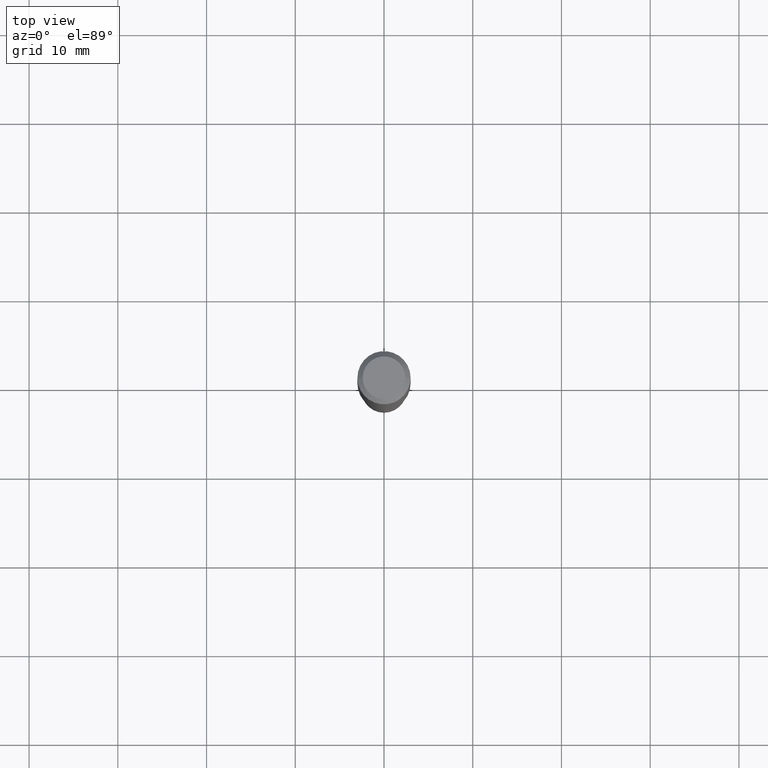
[diagram: clean part render]
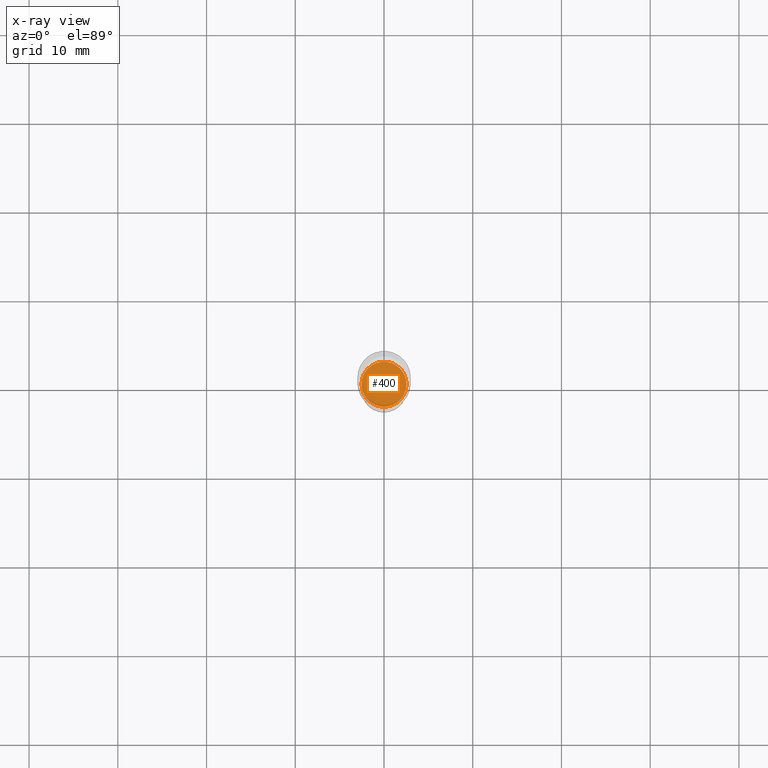
[diagram: x-ray — body ghosted, one internal face saturated and labeled with its STEP entity id]
A machine part, top view, then the same camera in x-ray: the body is ghosted and one INTERNAL B-rep face — a face not visible from any outside direction — is saturated and labeled: STEP entity #400.
In plain terms, the highlighted planar face has unit normal (-0, 0, 1).
Its self-contained STEP definition (entity closure, byte-faithful):
#23 = CARTESIAN_POINT ( 'NONE',  ( 0.09990000000000000269, -6.621943507249908450E-15, -1.696800000000000308 ) ) ;
#26 = VERTEX_POINT ( 'NONE', #88 ) ;
#38 = AXIS2_PLACEMENT_3D ( 'NONE', #97, #295, #216 ) ;
#88 = CARTESIAN_POINT ( 'NONE',  ( -0.09990000000000000269, -5.211864115550599962E-15, -1.696800000000000308 ) ) ;
#97 = CARTESIAN_POINT ( 'NONE',  ( 4.149471470334940863E-29, -5.924345535749050380E-15, -1.696800000000000308 ) ) ;
#126 = PLANE ( 'NONE',  #264 ) ;
#164 = CARTESIAN_POINT ( 'NONE',  ( 4.149471470334940863E-29, -5.924345535749050380E-15, -1.696800000000000308 ) ) ;
#165 = CIRCLE ( 'NONE', #433, 0.09990000000000000269 ) ;
#184 = ORIENTED_EDGE ( 'NONE', *, *, #362, .F. ) ;
#187 = DIRECTION ( 'NONE',  ( -2.445468806185136597E-29, 3.491481338843145583E-15, 1.000000000000000000 ) ) ;
#189 = CARTESIAN_POINT ( 'NONE',  ( 4.149471470334940863E-29, -5.924345535749050380E-15, -1.696800000000000308 ) ) ;
#196 = DIRECTION ( 'NONE',  ( -2.438088387897960049E-29, 3.491481338843145188E-15, 1.000000000000000000 ) ) ;
#216 = DIRECTION ( 'NONE',  ( 1.000000000000000000, -6.982962677686267499E-15, 0.000000000000000000 ) ) ;
#236 = EDGE_LOOP ( 'NONE', ( #184, #460 ) ) ;
#243 = VERTEX_POINT ( 'NONE', #23 ) ;
#249 = EDGE_CURVE ( 'NONE', #26, #243, #343, .T. ) ;
#264 = AXIS2_PLACEMENT_3D ( 'NONE', #164, #196, #448 ) ;
#267 = FACE_OUTER_BOUND ( 'NONE', #236, .T. ) ;
#295 = DIRECTION ( 'NONE',  ( -2.445468806185136597E-29, 3.491481338843145583E-15, 1.000000000000000000 ) ) ;
#337 = DIRECTION ( 'NONE',  ( 1.000000000000000000, -6.982962677686267499E-15, 0.000000000000000000 ) ) ;
#343 = CIRCLE ( 'NONE', #38, 0.09990000000000000269 ) ;
#362 = EDGE_CURVE ( 'NONE', #243, #26, #165, .T. ) ;
#400 = ADVANCED_FACE ( 'NONE', ( #267 ), #126, .F. ) ;
#433 = AXIS2_PLACEMENT_3D ( 'NONE', #189, #187, #337 ) ;
#448 = DIRECTION ( 'NONE',  ( 1.000000000000000000, -6.982962677686265922E-15, 4.876176775795935793E-29 ) ) ;
#460 = ORIENTED_EDGE ( 'NONE', *, *, #249, .F. ) ;